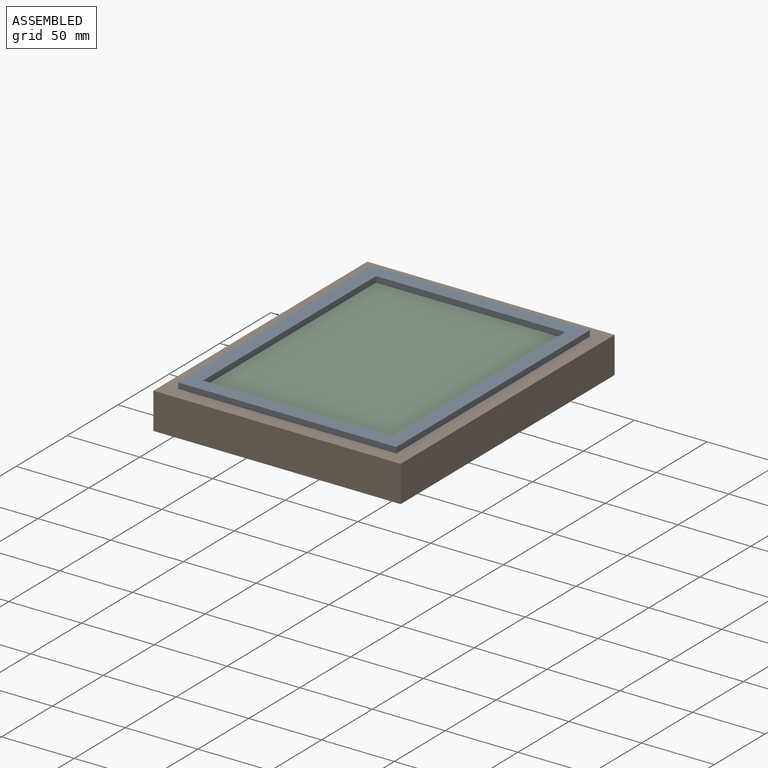
[diagram: assembled view]
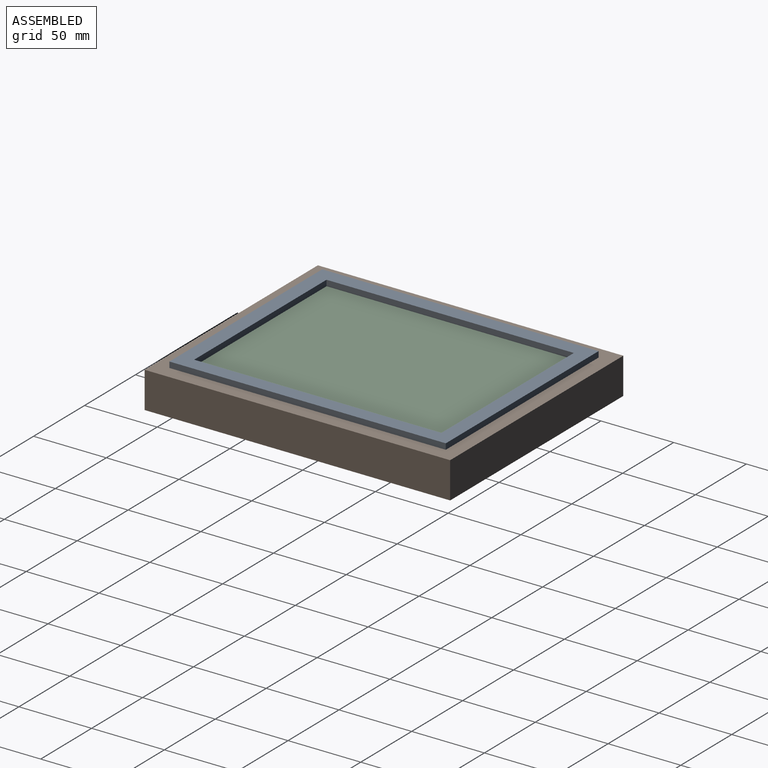
[diagram: assembled view, second angle]
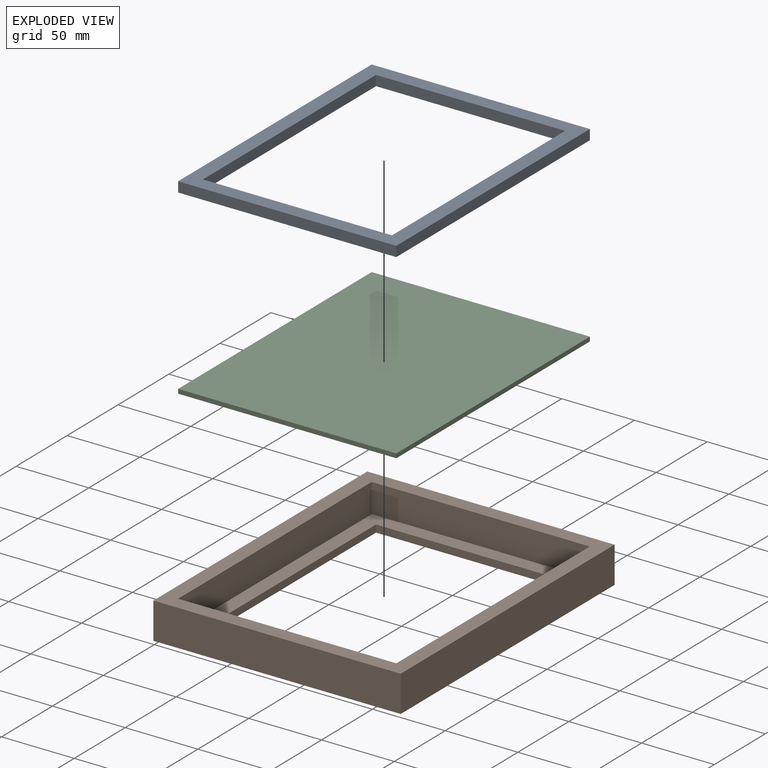
[diagram: exploded view]
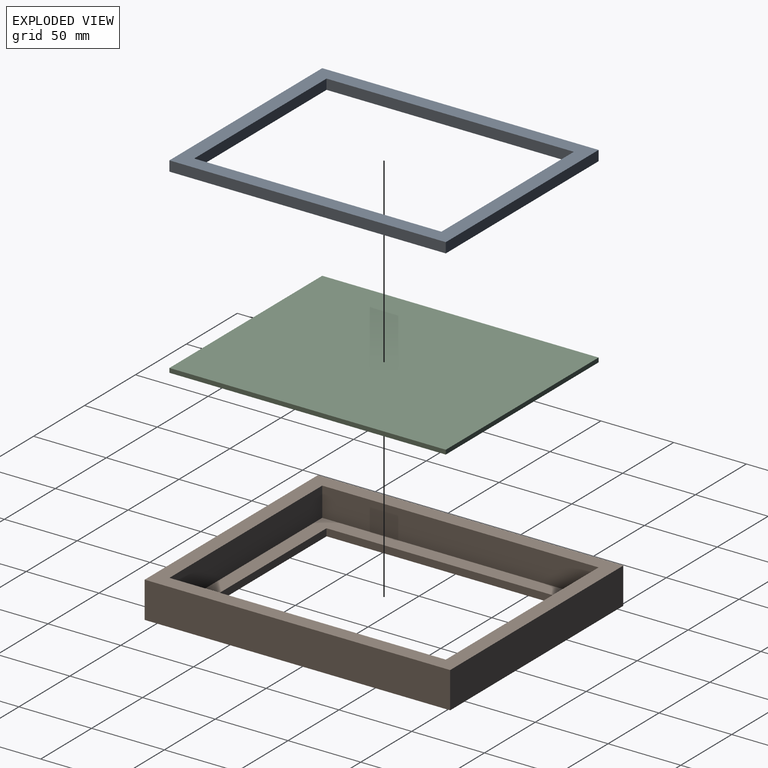
[diagram: exploded view, second angle]
ASSEMBLY  parts=3 mates=2
PART A: 10 faces, bbox 150x190x7 mm
  f0: plane 150x7mm, normal (0,1,0), area 1050mm2, adj f1,f7,f8,f9
  f1: plane 190x7mm, normal (-1,0,0), area 1330mm2, adj f0,f2,f8,f9
  f2: plane 150x7mm, normal (0,-1,0), area 1050mm2, adj f1,f7,f8,f9
  f3: plane 170x7mm, normal (1,0,0), area 1190mm2, adj f4,f6,f8,f9
  f4: plane 130x7mm, normal (0,-1,0), area 910mm2, adj f3,f5,f8,f9
  f5: plane 170x7mm, normal (-1,0,0), area 1190mm2, adj f4,f6,f8,f9
  f6: plane 130x7mm, normal (0,1,0), area 910mm2, adj f3,f5,f8,f9
  f7: plane 190x7mm, normal (1,0,0), area 1330mm2, adj f0,f2,f8,f9
  f8: plane 190x150mm, normal (0,0,1), area 6400mm2, adj f0,f1,f2,f3,f4,f5,f6,f7
  f9: plane 190x150mm, normal (0,0,-1), area 6400mm2, adj f0,f1,f2,f3,f4,f5,f6,f7
PART B: 15 faces, bbox 170x210x25 mm
  f0: plane 150x20mm, normal (0,1,0), area 3000mm2, adj f1,f7,f8,f14
  f1: plane 190x20mm, normal (1,0,0), area 3800mm2, adj f0,f2,f8,f14
  f2: plane 150x20mm, normal (0,-1,0), area 3000mm2, adj f1,f7,f8,f14
  f3: plane 210x25mm, normal (1,0,0), area 5250mm2, adj f4,f6,f8,f9
  f4: plane 170x25mm, normal (0,1,0), area 4250mm2, adj f3,f5,f8,f9
  f5: plane 210x25mm, normal (-1,0,0), area 5250mm2, adj f4,f6,f8,f9
  f6: plane 170x25mm, normal (0,-1,0), area 4250mm2, adj f3,f5,f8,f9
  f7: plane 190x20mm, normal (-1,0,0), area 3800mm2, adj f0,f2,f8,f14
  f8: plane 210x170mm, normal (0,0,1), area 7200mm2, adj f0,f1,f2,f3,f4,f5,f6,f7
  f9: plane 210x170mm, normal (0,0,-1), area 13600mm2, adj f3,f4,f5,f6,f10,f11,f12,f13
  f10: plane 130x5mm, normal (0,1,0), area 650mm2, adj f9,f11,f13,f14
  f11: plane 170x5mm, normal (1,0,0), area 850mm2, adj f9,f10,f12,f14
  f12: plane 130x5mm, normal (0,-1,0), area 650mm2, adj f9,f11,f13,f14
  f13: plane 170x5mm, normal (-1,0,0), area 850mm2, adj f9,f10,f12,f14
  f14: plane 190x150mm, normal (0,0,1), area 6400mm2, adj f0,f1,f2,f7,f10,f11,f12,f13
PART C: 6 faces, bbox 150x190x3 mm
  f0: plane 190x3mm, normal (1,0,0), area 570mm2, adj f1,f3,f4,f5
  f1: plane 150x3mm, normal (0,1,0), area 450mm2, adj f0,f2,f4,f5
  f2: plane 190x3mm, normal (-1,0,0), area 570mm2, adj f1,f3,f4,f5
  f3: plane 150x3mm, normal (0,-1,0), area 450mm2, adj f0,f2,f4,f5
  f4: plane 190x150mm, normal (0,0,1), area 28500mm2, adj f0,f1,f2,f3
  f5: plane 190x150mm, normal (0,0,-1), area 28500mm2, adj f0,f1,f2,f3
PLACE A t=(222.74,-14.65,14.87)mm
PLACE B t=(-13.26,1.69,-7.13)mm
PLACE C t=(274.49,189.94,14.87)mm
MATE fastened C.f4 <-> B.f8  axis (0,0,1) through (61.74,96.69,17.87)mm
MATE fastened A.f9 <-> C.f5  axis (0,0,1) through (-88.26,96.69,14.87)mm
